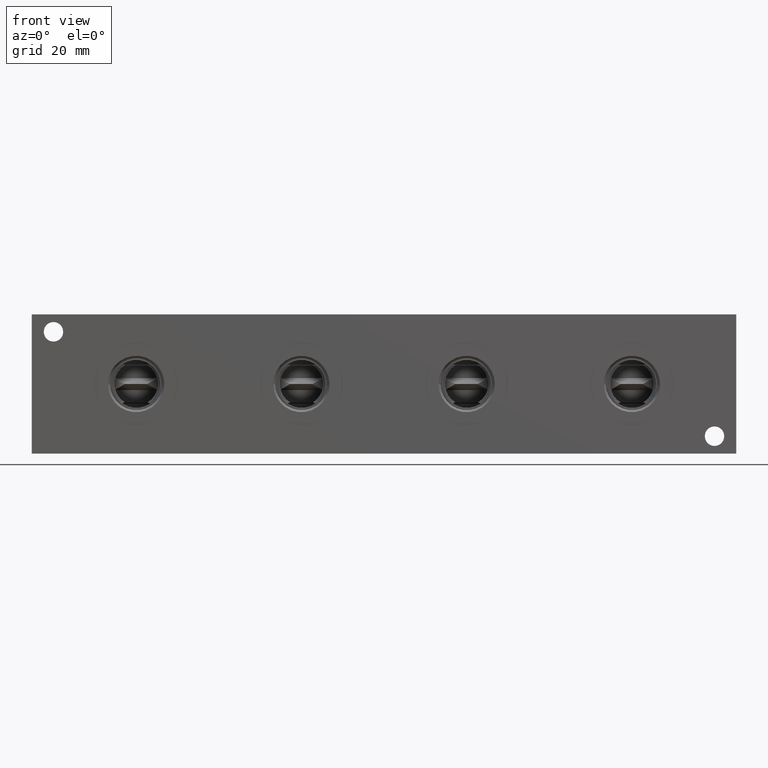
[diagram: clean part render]
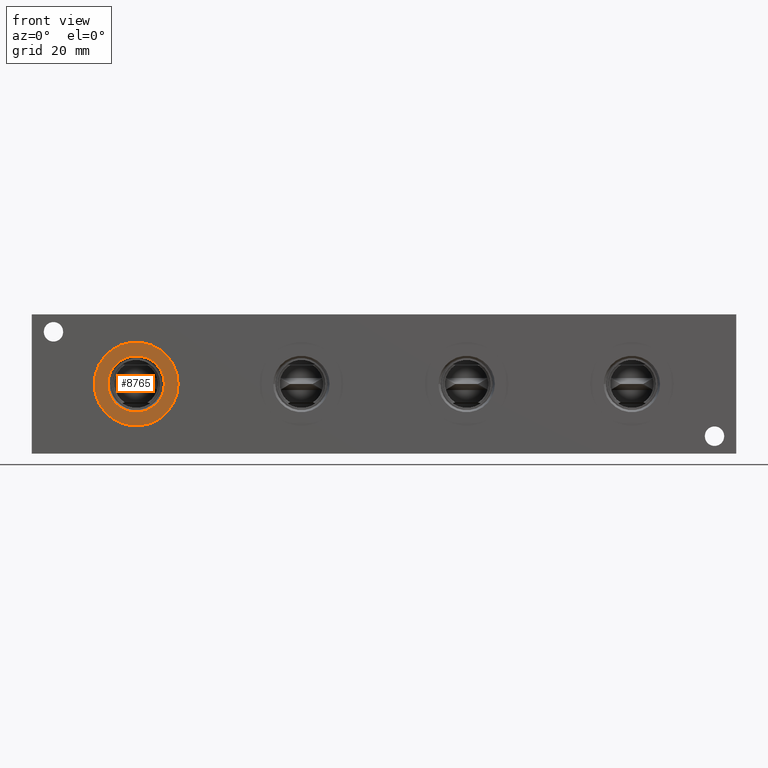
[diagram: same view with one face highlighted and labeled with its STEP entity id]
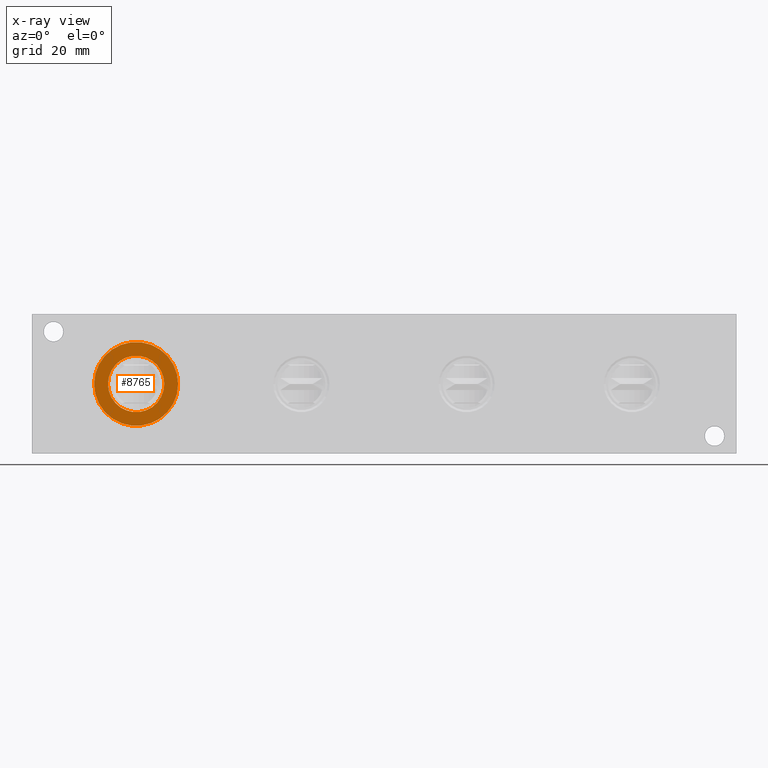
[diagram: x-ray of the same camera — body ghosted, the highlighted face saturated]
A machine part, front view. The second image highlights one B-rep face of the part: STEP entity #8765.
The next image is the same camera in x-ray: the body ghosted, the highlighted face saturated — about 0% of this face is hidden behind the body in this view.
In plain terms, the highlighted planar face has unit normal (0, 1, 0).
Its self-contained STEP definition (entity closure, byte-faithful):
#396=CIRCLE('',#9400,15.3162);
#397=CIRCLE('',#9401,15.3162);
#398=CIRCLE('',#9403,10.2997);
#399=CIRCLE('',#9404,10.2997);
#473=FACE_BOUND('',#1688,.T.);
#720=PLANE('',#9402);
#1170=FACE_OUTER_BOUND('',#1687,.T.);
#1687=EDGE_LOOP('',(#7807,#7808));
#1688=EDGE_LOOP('',(#7809,#7810));
#4206=VERTEX_POINT('',#15288);
#4207=VERTEX_POINT('',#15290);
#4208=VERTEX_POINT('',#15294);
#4209=VERTEX_POINT('',#15295);
#5425=EDGE_CURVE('',#4206,#4207,#396,.T.);
#5426=EDGE_CURVE('',#4207,#4206,#397,.T.);
#5427=EDGE_CURVE('',#4208,#4209,#398,.T.);
#5428=EDGE_CURVE('',#4209,#4208,#399,.T.);
#7807=ORIENTED_EDGE('',*,*,#5426,.F.);
#7808=ORIENTED_EDGE('',*,*,#5425,.F.);
#7809=ORIENTED_EDGE('',*,*,#5427,.T.);
#7810=ORIENTED_EDGE('',*,*,#5428,.T.);
#8765=ADVANCED_FACE('',(#1170,#473),#720,.F.);
#9400=AXIS2_PLACEMENT_3D('',#15291,#11357,#11358);
#9401=AXIS2_PLACEMENT_3D('',#15292,#11359,#11360);
#9402=AXIS2_PLACEMENT_3D('',#15293,#11361,#11362);
#9403=AXIS2_PLACEMENT_3D('',#15296,#11363,#11364);
#9404=AXIS2_PLACEMENT_3D('',#15297,#11365,#11366);
#11357=DIRECTION('center_axis',(0.,1.,0.));
#11358=DIRECTION('ref_axis',(1.,0.,0.));
#11359=DIRECTION('center_axis',(0.,1.,0.));
#11360=DIRECTION('ref_axis',(1.,0.,0.));
#11361=DIRECTION('center_axis',(0.,1.,0.));
#11362=DIRECTION('ref_axis',(0.,0.,1.));
#11363=DIRECTION('center_axis',(0.,1.,0.));
#11364=DIRECTION('ref_axis',(1.,0.,0.));
#11365=DIRECTION('center_axis',(0.,1.,0.));
#11366=DIRECTION('ref_axis',(1.,0.,0.));
#15288=CARTESIAN_POINT('',(22.7838,0.7874,25.4));
#15290=CARTESIAN_POINT('',(53.4162,0.7874,25.4));
#15291=CARTESIAN_POINT('Origin',(38.1,0.7874,25.4));
#15292=CARTESIAN_POINT('Origin',(38.1,0.7874,25.4));
#15293=CARTESIAN_POINT('Origin',(48.3997,0.7874,25.4));
#15294=CARTESIAN_POINT('',(48.3997,0.7874,25.4));
#15295=CARTESIAN_POINT('',(27.8003,0.787400000000001,25.4));
#15296=CARTESIAN_POINT('Origin',(38.1,0.7874,25.4));
#15297=CARTESIAN_POINT('Origin',(38.1,0.7874,25.4));